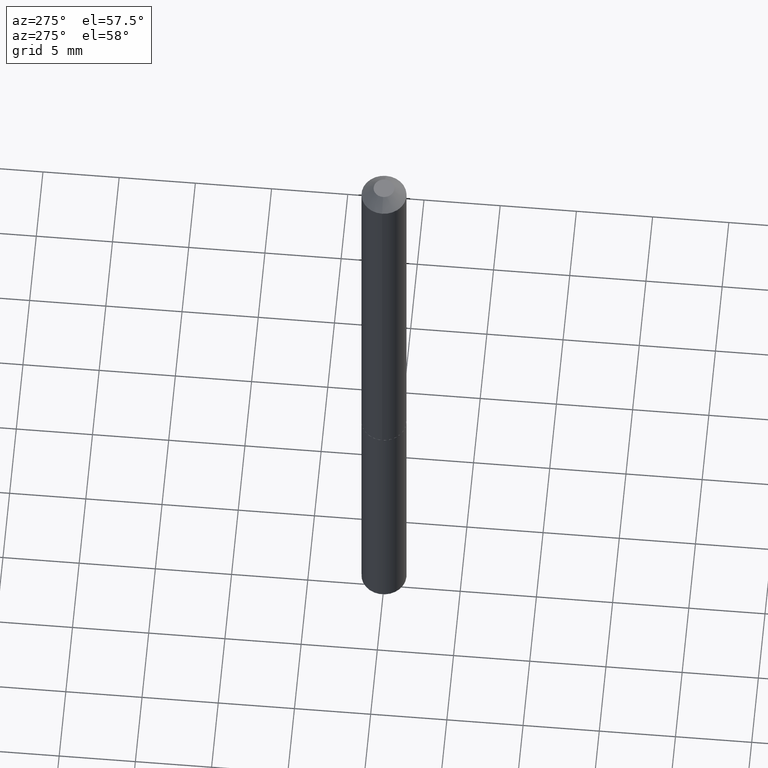
[diagram: clean part render]
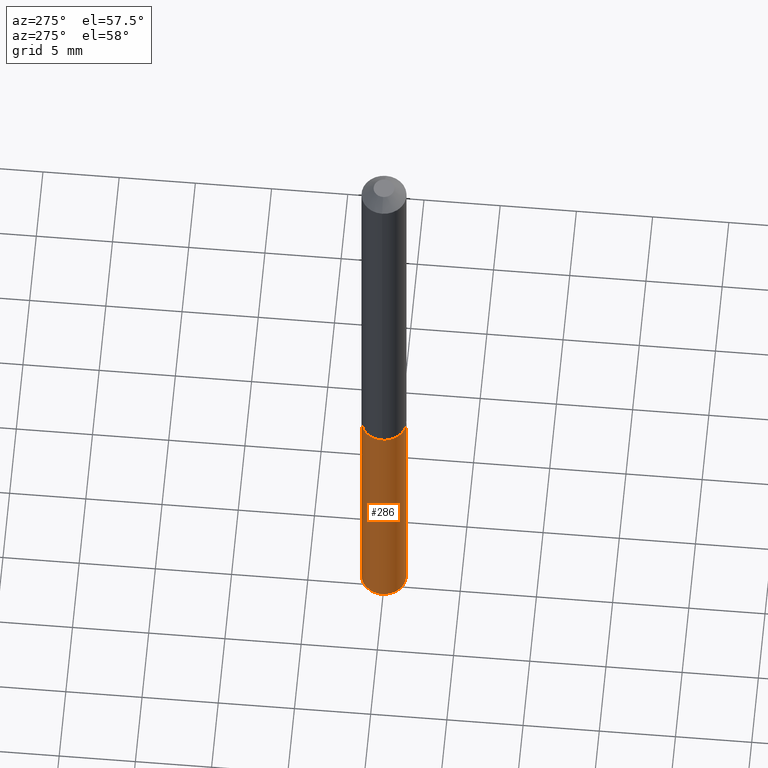
[diagram: same view with one face highlighted and labeled with its STEP entity id]
A machine part, auxiliary view. The second image highlights one B-rep face of the part: STEP entity #286.
In plain terms, the highlighted cylindrical surface (edge-blend (fillet) strip) has radius 1.4732 mm, axis along (-0, 0, 1).
Its self-contained STEP definition (entity closure, byte-faithful):
#23 = VECTOR ( 'NONE', #118, 39.37007874015748143 ) ;
#69 = CARTESIAN_POINT ( 'NONE',  ( 4.533507991115376796E-29, -6.472995386023078550E-15, -1.853889726412560668 ) ) ;
#70 = DIRECTION ( 'NONE',  ( -2.445304140748977564E-29, 3.491717149119900219E-15, 1.000000000000000000 ) ) ;
#72 = EDGE_LOOP ( 'NONE', ( #289, #136, #319, #380 ) ) ;
#95 = DIRECTION ( 'NONE',  ( -6.982962677686265922E-15, -1.000000000000000000, 2.355041373848502747E-15 ) ) ;
#98 = VECTOR ( 'NONE', #117, 39.37007874015748143 ) ;
#117 = DIRECTION ( 'NONE',  ( -2.445304140748977844E-29, 3.491717149119900614E-15, 1.000000000000000000 ) ) ;
#118 = DIRECTION ( 'NONE',  ( -2.445304140748977844E-29, 3.491717149119900614E-15, 1.000000000000000000 ) ) ;
#127 = EDGE_CURVE ( 'NONE', #191, #221, #238, .T. ) ;
#136 = ORIENTED_EDGE ( 'NONE', *, *, #352, .T. ) ;
#151 = AXIS2_PLACEMENT_3D ( 'NONE', #285, #70, #95 ) ;
#172 = AXIS2_PLACEMENT_3D ( 'NONE', #69, #185, #214 ) ;
#175 = CARTESIAN_POINT ( 'NONE',  ( -4.050118353057583582E-16, -0.05800000000000649775, -1.853889726412560224 ) ) ;
#185 = DIRECTION ( 'NONE',  ( -2.445304140748977564E-29, 3.491717149119900219E-15, 1.000000000000000000 ) ) ;
#186 = DIRECTION ( 'NONE',  ( -2.445304140748977564E-29, 3.491717149119900219E-15, 1.000000000000000000 ) ) ;
#189 = CIRCLE ( 'NONE', #172, 0.05800000000000000294 ) ;
#190 = VERTEX_POINT ( 'NONE', #204 ) ;
#191 = VERTEX_POINT ( 'NONE', #175 ) ;
#196 = CARTESIAN_POINT ( 'NONE',  ( 4.121147867409035375E-16, 0.05799999999999354977, -1.853889726412560890 ) ) ;
#204 = CARTESIAN_POINT ( 'NONE',  ( 4.121147867409035375E-16, 0.05799999999999611022, -1.116000000000000103 ) ) ;
#206 = LINE ( 'NONE', #326, #23 ) ;
#208 = CARTESIAN_POINT ( 'NONE',  ( -4.050118353057761076E-16, -0.05800000000000389566, -1.115999999999999881 ) ) ;
#210 = EDGE_CURVE ( 'NONE', #382, #190, #206, .T. ) ;
#213 = CARTESIAN_POINT ( 'NONE',  ( -4.050118353057761076E-16, -0.05800000000000389566, -1.115999999999999881 ) ) ;
#214 = DIRECTION ( 'NONE',  ( -6.982962677686265922E-15, -1.000000000000000000, 4.710082747697005495E-15 ) ) ;
#218 = CARTESIAN_POINT ( 'NONE',  ( 2.729143187702612729E-29, -3.896493174148950582E-15, -1.116000000000000103 ) ) ;
#221 = VERTEX_POINT ( 'NONE', #213 ) ;
#224 = EDGE_CURVE ( 'NONE', #190, #221, #335, .T. ) ;
#238 = LINE ( 'NONE', #208, #98 ) ;
#253 = AXIS2_PLACEMENT_3D ( 'NONE', #218, #186, #288 ) ;
#255 = FACE_OUTER_BOUND ( 'NONE', #72, .T. ) ;
#285 = CARTESIAN_POINT ( 'NONE',  ( 2.729143187702612729E-29, -3.896493174148950582E-15, -1.116000000000000103 ) ) ;
#286 = ADVANCED_FACE ( 'NONE', ( #255 ), #377, .T. ) ;
#288 = DIRECTION ( 'NONE',  ( -6.982962677686265922E-15, -1.000000000000000000, 2.355041373848502747E-15 ) ) ;
#289 = ORIENTED_EDGE ( 'NONE', *, *, #210, .F. ) ;
#319 = ORIENTED_EDGE ( 'NONE', *, *, #127, .T. ) ;
#326 = CARTESIAN_POINT ( 'NONE',  ( 4.121147867408853444E-16, 0.05799999999999611022, -1.116000000000000103 ) ) ;
#335 = CIRCLE ( 'NONE', #151, 0.05800000000000000294 ) ;
#352 = EDGE_CURVE ( 'NONE', #382, #191, #189, .T. ) ;
#377 = CYLINDRICAL_SURFACE ( 'NONE', #253, 0.05800000000000000294 ) ;
#380 = ORIENTED_EDGE ( 'NONE', *, *, #224, .F. ) ;
#382 = VERTEX_POINT ( 'NONE', #196 ) ;